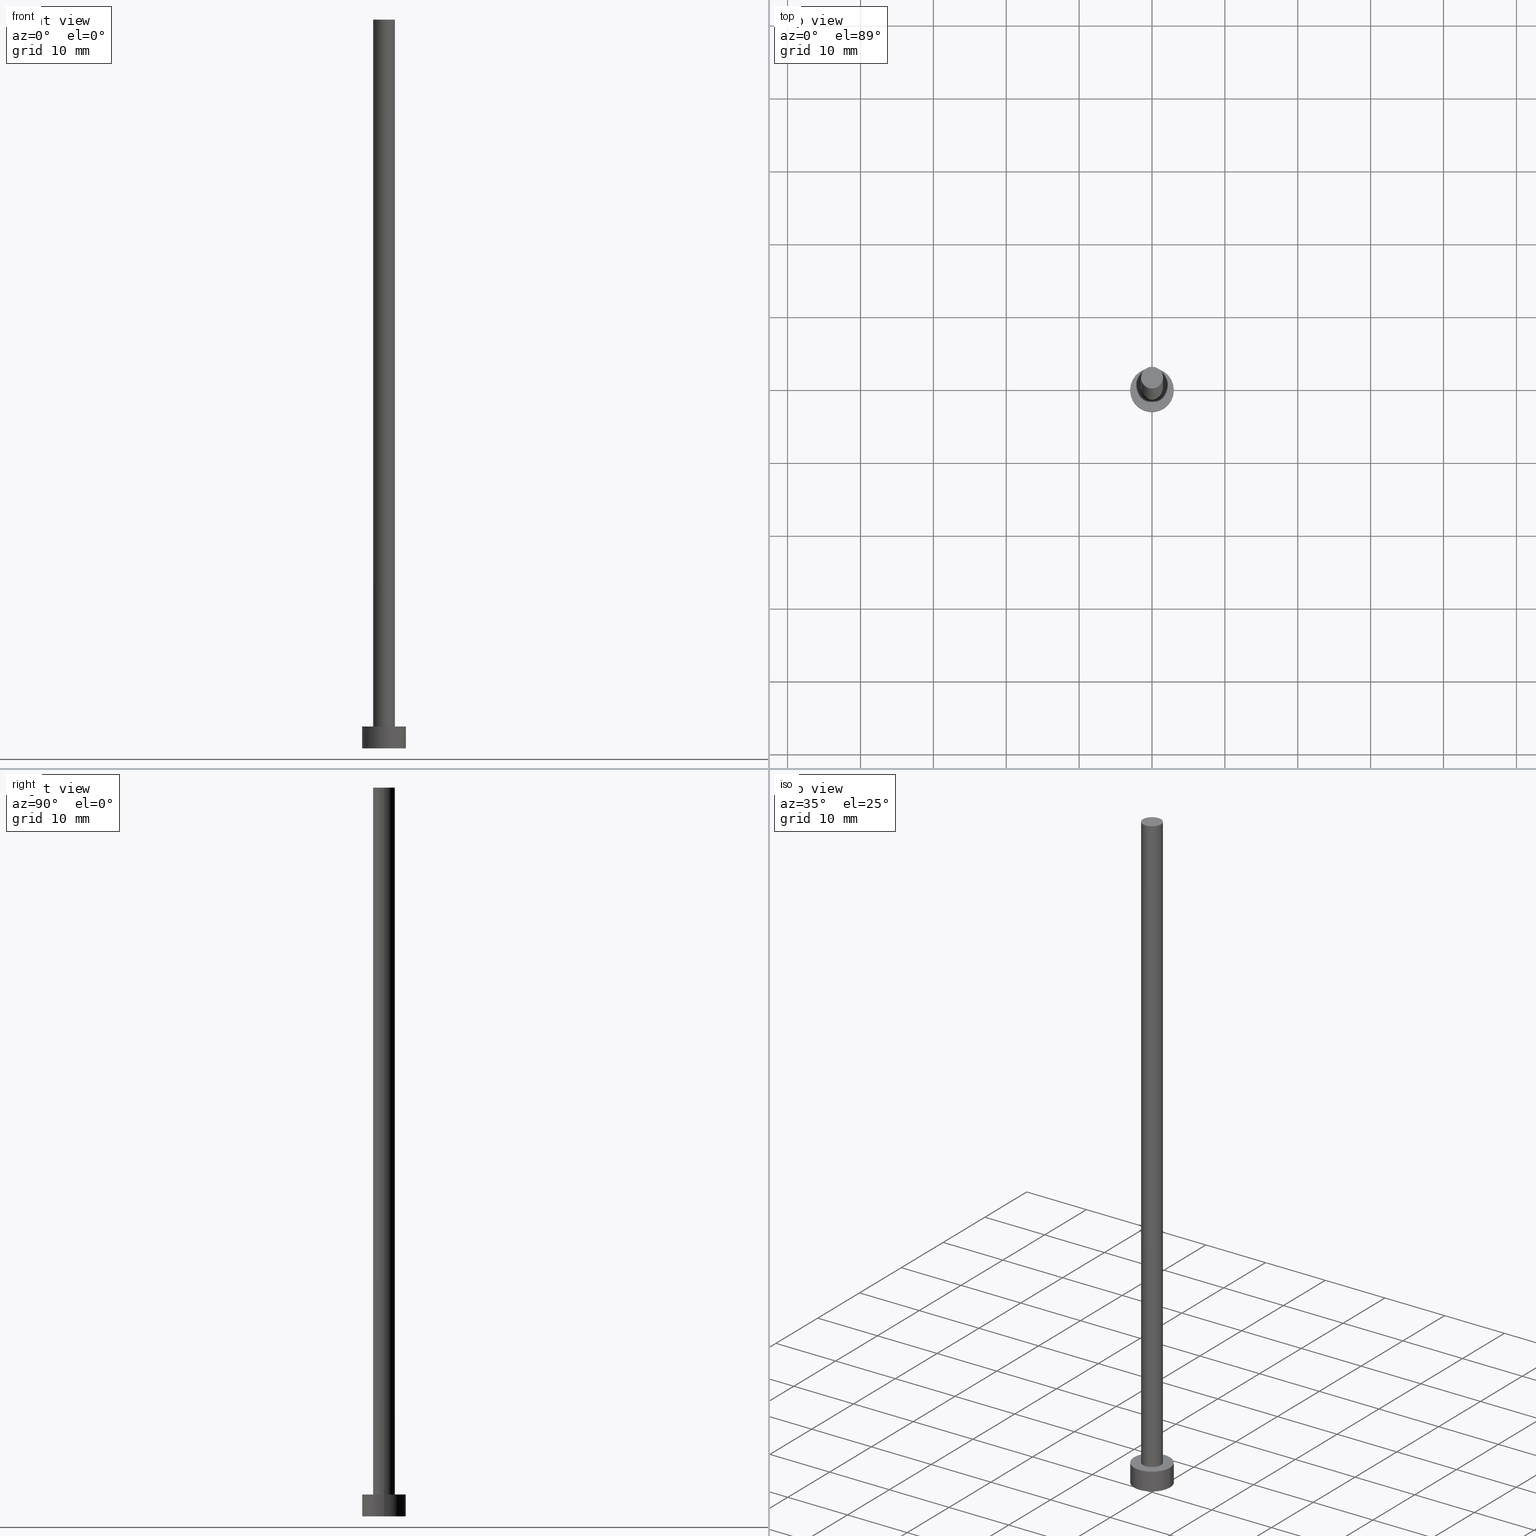
[diagram: canonical four-view strip — front | top / right | iso, engineering-drawing reading convention]
A machine part, canonical four-view strip (front | top / right | iso — engineering-drawing reading convention). The complete STEP part file that produces these views, byte-faithful:
ISO-10303-21;
HEADER;
FILE_DESCRIPTION (( 'STEP AP203' ),
    '1' );
FILE_NAME ('7081.STEP',
    '2023-02-12T12:14:11',
    ( '' ),
    ( '' ),
    'SwSTEP 2.0',
    'SolidWorks 2019',
    '' );
FILE_SCHEMA (( 'CONFIG_CONTROL_DESIGN' ));
ENDSEC;

DATA;
#1 = DIRECTION ( 'NONE',  ( 0.000000000000000000, 0.000000000000000000, 1.000000000000000000 ) ) ;
#2 = CC_DESIGN_PERSON_AND_ORGANIZATION_ASSIGNMENT ( #52, #32, ( #167 ) ) ;
#3 = CIRCLE ( 'NONE', #7, 1.500000000000000222 ) ;
#4 = MECHANICAL_CONTEXT ( 'NONE', #253, 'mechanical' ) ;
#5 = CALENDAR_DATE ( 2023, 12, 2 ) ;
#6 = PERSON_AND_ORGANIZATION ( #42, #12 ) ;
#7 = AXIS2_PLACEMENT_3D ( 'NONE', #145, #199, #236 ) ;
#8 = EDGE_LOOP ( 'NONE', ( #70, #94, #155, #136 ) ) ;
#9 = APPROVAL_DATE_TIME ( #228, #65 ) ;
#10 = EDGE_CURVE ( 'NONE', #247, #156, #248, .T. ) ;
#11 = EDGE_LOOP ( 'NONE', ( #133, #196 ) ) ;
#12 = ORGANIZATION ( 'NEUR�EN�', 'NEUR�EN�', '' ) ;
#13 = CARTESIAN_POINT ( 'NONE',  ( 0.000000000000000000, 0.000000000000000000, 3.000000000000000000 ) ) ;
#14 = DIRECTION ( 'NONE',  ( -1.000000000000000000, 0.000000000000000000, 0.000000000000000000 ) ) ;
#15 = ADVANCED_FACE ( 'NONE', ( #144 ), #214, .T. ) ;
#16 = DIRECTION ( 'NONE',  ( -1.000000000000000000, 0.000000000000000000, 0.000000000000000000 ) ) ;
#17 = CIRCLE ( 'NONE', #66, 1.500000000000000222 ) ;
#18 = CC_DESIGN_DATE_AND_TIME_ASSIGNMENT ( #89, #245, ( #167 ) ) ;
#19 = CALENDAR_DATE ( 2023, 12, 2 ) ;
#20 = DIRECTION ( 'NONE',  ( -1.000000000000000000, 0.000000000000000000, 0.000000000000000000 ) ) ;
#21 = CALENDAR_DATE ( 2023, 12, 2 ) ;
#22 = PERSON_AND_ORGANIZATION_ROLE ( 'design_owner' ) ;
#23 = CC_DESIGN_PERSON_AND_ORGANIZATION_ASSIGNMENT ( #219, #22, ( #230 ) ) ;
#24 = LINE ( 'NONE', #47, #83 ) ;
#25 = AXIS2_PLACEMENT_3D ( 'NONE', #138, #117, #57 ) ;
#26 =( LENGTH_UNIT ( ) NAMED_UNIT ( * ) SI_UNIT ( .MILLI., .METRE. ) );
#27 = VERTEX_POINT ( 'NONE', #249 ) ;
#28 = PRODUCT_DEFINITION_SHAPE ( 'NONE', 'NONE',  #167 ) ;
#29 = ORIENTED_EDGE ( 'NONE', *, *, #108, .F. ) ;
#30 = CC_DESIGN_APPROVAL ( #224, ( #36 ) ) ;
#31 = EDGE_LOOP ( 'NONE', ( #246, #211 ) ) ;
#32 = PERSON_AND_ORGANIZATION_ROLE ( 'creator' ) ;
#33 = ADVANCED_FACE ( 'NONE', ( #122 ), #212, .T. ) ;
#34 = EDGE_LOOP ( 'NONE', ( #29, #241, #49, #50 ) ) ;
#35 = PLANE ( 'NONE',  #128 ) ;
#36 = SECURITY_CLASSIFICATION ( '', '', #43 ) ;
#37 = CARTESIAN_POINT ( 'NONE',  ( 3.000000000000000444, 3.673940397442060361E-16, 3.000000000000000000 ) ) ;
#38 = CARTESIAN_POINT ( 'NONE',  ( 0.000000000000000000, 0.000000000000000000, 100.0000000000000000 ) ) ;
#39 = MANIFOLD_SOLID_BREP ( 'P�idat vysunut�m3', #217 ) ;
#40 = CARTESIAN_POINT ( 'NONE',  ( 0.000000000000000000, 0.000000000000000000, 3.000000000000000000 ) ) ;
#41 = APPROVAL_PERSON_ORGANIZATION ( #68, #216, #111 ) ;
#42 = PERSON ( 'NEUR�EN�', 'NEUR�EN�', 'NEUR�EN�', ('NEUR�EN�'), ('NEUR�EN�'), ('NEUR�EN�') ) ;
#43 = SECURITY_CLASSIFICATION_LEVEL ( 'unclassified' ) ;
#44 =( NAMED_UNIT ( * ) PLANE_ANGLE_UNIT ( ) SI_UNIT ( $, .RADIAN. ) );
#45 = DIRECTION ( 'NONE',  ( 1.000000000000000000, 0.000000000000000000, -0.000000000000000000 ) ) ;
#46 = VECTOR ( 'NONE', #120, 1000.000000000000000 ) ;
#47 = CARTESIAN_POINT ( 'NONE',  ( -3.000000000000000444, 0.000000000000000000, 3.000000000000000000 ) ) ;
#48 = ORIENTED_EDGE ( 'NONE', *, *, #124, .F. ) ;
#49 = ORIENTED_EDGE ( 'NONE', *, *, #69, .T. ) ;
#50 = ORIENTED_EDGE ( 'NONE', *, *, #100, .F. ) ;
#51 = ADVANCED_FACE ( 'NONE', ( #183 ), #54, .T. ) ;
#52 = PERSON_AND_ORGANIZATION ( #42, #12 ) ;
#53 = DIRECTION ( 'NONE',  ( 1.000000000000000000, 0.000000000000000000, 0.000000000000000000 ) ) ;
#54 = CYLINDRICAL_SURFACE ( 'NONE', #146, 3.000000000000000444 ) ;
#55 = AXIS2_PLACEMENT_3D ( 'NONE', #99, #182, #234 ) ;
#56 = DIRECTION ( 'NONE',  ( 1.000000000000000000, 0.000000000000000000, -0.000000000000000000 ) ) ;
#57 = DIRECTION ( 'NONE',  ( 1.000000000000000000, 0.000000000000000000, 0.000000000000000000 ) ) ;
#58 = PERSON_AND_ORGANIZATION ( #42, #12 ) ;
#59 = COORDINATED_UNIVERSAL_TIME_OFFSET ( 1, 0, .AHEAD. ) ;
#60 = PLANE ( 'NONE',  #243 ) ;
#61 = ADVANCED_FACE ( 'NONE', ( #251 ), #35, .F. ) ;
#62 = APPROVAL_ROLE ( '' ) ;
#63 = CC_DESIGN_SECURITY_CLASSIFICATION ( #36, ( #121 ) ) ;
#64 = DIRECTION ( 'NONE',  ( 1.000000000000000000, 0.000000000000000000, 0.000000000000000000 ) ) ;
#65 = APPROVAL ( #80, 'NEUR�EN�' ) ;
#66 = AXIS2_PLACEMENT_3D ( 'NONE', #38, #161, #160 ) ;
#67 = ORIENTED_EDGE ( 'NONE', *, *, #113, .F. ) ;
#68 = PERSON_AND_ORGANIZATION ( #42, #12 ) ;
#69 = EDGE_CURVE ( 'NONE', #27, #112, #3, .T. ) ;
#70 = ORIENTED_EDGE ( 'NONE', *, *, #171, .F. ) ;
#71 = EDGE_LOOP ( 'NONE', ( #139, #197 ) ) ;
#72 = DIRECTION ( 'NONE',  ( -0.000000000000000000, -0.000000000000000000, -1.000000000000000000 ) ) ;
#73 = CARTESIAN_POINT ( 'NONE',  ( 0.000000000000000000, 0.000000000000000000, 3.000000000000000000 ) ) ;
#74 = LINE ( 'NONE', #37, #46 ) ;
#75 = DIRECTION ( 'NONE',  ( 0.000000000000000000, 0.000000000000000000, 1.000000000000000000 ) ) ;
#76 = PRODUCT_RELATED_PRODUCT_CATEGORY ( 'detail', '', ( #230 ) ) ;
#77 = LOCAL_TIME ( 13, 14, 11.00000000000000000, #127 ) ;
#78 = APPROVAL_ROLE ( '' ) ;
#79 = CARTESIAN_POINT ( 'NONE',  ( 0.000000000000000000, 0.000000000000000000, 100.0000000000000000 ) ) ;
#80 = APPROVAL_STATUS ( 'not_yet_approved' ) ;
#81 = PERSON_AND_ORGANIZATION_ROLE ( 'design_supplier' ) ;
#82 = DIRECTION ( 'NONE',  ( -0.000000000000000000, -0.000000000000000000, -1.000000000000000000 ) ) ;
#83 = VECTOR ( 'NONE', #82, 1000.000000000000000 ) ;
#84 = DIRECTION ( 'NONE',  ( -0.000000000000000000, -0.000000000000000000, -1.000000000000000000 ) ) ;
#85 = EDGE_CURVE ( 'NONE', #135, #110, #17, .T. ) ;
#86 = CYLINDRICAL_SURFACE ( 'NONE', #87, 1.500000000000000222 ) ;
#87 = AXIS2_PLACEMENT_3D ( 'NONE', #79, #130, #20 ) ;
#88 = ORIENTED_EDGE ( 'NONE', *, *, #113, .T. ) ;
#89 = DATE_AND_TIME ( #114, #95 ) ;
#90 = ORIENTED_EDGE ( 'NONE', *, *, #187, .T. ) ;
#91 = COORDINATED_UNIVERSAL_TIME_OFFSET ( 1, 0, .AHEAD. ) ;
#92 = VERTEX_POINT ( 'NONE', #125 ) ;
#93 = APPROVAL_DATE_TIME ( #157, #216 ) ;
#94 = ORIENTED_EDGE ( 'NONE', *, *, #124, .T. ) ;
#95 = LOCAL_TIME ( 13, 14, 11.00000000000000000, #91 ) ;
#96 = CARTESIAN_POINT ( 'NONE',  ( 0.000000000000000000, 0.000000000000000000, 0.000000000000000000 ) ) ;
#97 = CARTESIAN_POINT ( 'NONE',  ( 1.500000000000000222, 1.836970198721029934E-16, 100.0000000000000000 ) ) ;
#98 = DESIGN_CONTEXT ( 'detailed design', #205, 'design' ) ;
#99 = CARTESIAN_POINT ( 'NONE',  ( 0.000000000000000000, 0.000000000000000000, 100.0000000000000000 ) ) ;
#100 = EDGE_CURVE ( 'NONE', #135, #112, #123, .T. ) ;
#101 = APPROVAL_DATE_TIME ( #105, #224 ) ;
#102 = AXIS2_PLACEMENT_3D ( 'NONE', #221, #239, #223 ) ;
#103 = PERSON_AND_ORGANIZATION ( #42, #12 ) ;
#104 = CARTESIAN_POINT ( 'NONE',  ( -3.000000000000000444, 0.000000000000000000, 0.000000000000000000 ) ) ;
#105 = DATE_AND_TIME ( #19, #77 ) ;
#106 = DIRECTION ( 'NONE',  ( 0.000000000000000000, 0.000000000000000000, 1.000000000000000000 ) ) ;
#107 = CARTESIAN_POINT ( 'NONE',  ( 0.000000000000000000, 0.000000000000000000, 3.000000000000000000 ) ) ;
#108 = EDGE_CURVE ( 'NONE', #110, #135, #118, .T. ) ;
#109 =( NAMED_UNIT ( * ) SI_UNIT ( $, .STERADIAN. ) SOLID_ANGLE_UNIT ( ) );
#110 = VERTEX_POINT ( 'NONE', #97 ) ;
#111 = APPROVAL_ROLE ( '' ) ;
#112 = VERTEX_POINT ( 'NONE', #186 ) ;
#113 = EDGE_CURVE ( 'NONE', #210, #92, #185, .T. ) ;
#114 = CALENDAR_DATE ( 2023, 12, 2 ) ;
#115 = LOCAL_TIME ( 13, 14, 11.00000000000000000, #59 ) ;
#116 = EDGE_LOOP ( 'NONE', ( #48, #192, #90, #88 ) ) ;
#117 = DIRECTION ( 'NONE',  ( 0.000000000000000000, 0.000000000000000000, 1.000000000000000000 ) ) ;
#118 = CIRCLE ( 'NONE', #55, 1.500000000000000222 ) ;
#119 = EDGE_CURVE ( 'NONE', #92, #210, #159, .T. ) ;
#120 = DIRECTION ( 'NONE',  ( -0.000000000000000000, -0.000000000000000000, -1.000000000000000000 ) ) ;
#121 = PRODUCT_DEFINITION_FORMATION_WITH_SPECIFIED_SOURCE ( 'LIBOVOLN�', '', #230, .NOT_KNOWN. ) ;
#122 = FACE_OUTER_BOUND ( 'NONE', #34, .T. ) ;
#123 = LINE ( 'NONE', #198, #220 ) ;
#124 = EDGE_CURVE ( 'NONE', #156, #92, #74, .T. ) ;
#125 = CARTESIAN_POINT ( 'NONE',  ( 3.000000000000000444, 3.673940397442060361E-16, 0.000000000000000000 ) ) ;
#126 = LOCAL_TIME ( 13, 14, 11.00000000000000000, #191 ) ;
#127 = COORDINATED_UNIVERSAL_TIME_OFFSET ( 1, 0, .AHEAD. ) ;
#128 = AXIS2_PLACEMENT_3D ( 'NONE', #96, #184, #56 ) ;
#129 = DIRECTION ( 'NONE',  ( 1.000000000000000000, 0.000000000000000000, 0.000000000000000000 ) ) ;
#130 = DIRECTION ( 'NONE',  ( -0.000000000000000000, -0.000000000000000000, -1.000000000000000000 ) ) ;
#131 = ADVANCED_FACE ( 'NONE', ( #164 ), #86, .T. ) ;
#132 = AXIS2_PLACEMENT_3D ( 'NONE', #213, #237, #232 ) ;
#133 = ORIENTED_EDGE ( 'NONE', *, *, #85, .T. ) ;
#134 = CARTESIAN_POINT ( 'NONE',  ( 0.000000000000000000, 0.000000000000000000, 100.0000000000000000 ) ) ;
#135 = VERTEX_POINT ( 'NONE', #174 ) ;
#136 = ORIENTED_EDGE ( 'NONE', *, *, #187, .F. ) ;
#137 = APPROVAL_STATUS ( 'not_yet_approved' ) ;
#138 = CARTESIAN_POINT ( 'NONE',  ( 0.000000000000000000, 0.000000000000000000, 3.000000000000000000 ) ) ;
#139 = ORIENTED_EDGE ( 'NONE', *, *, #10, .T. ) ;
#140 = EDGE_CURVE ( 'NONE', #112, #27, #235, .T. ) ;
#141 = DIRECTION ( 'NONE',  ( -0.000000000000000000, -0.000000000000000000, -1.000000000000000000 ) ) ;
#142 = LOCAL_TIME ( 13, 14, 11.00000000000000000, #244 ) ;
#143 = CARTESIAN_POINT ( 'NONE',  ( 0.000000000000000000, 0.000000000000000000, 0.000000000000000000 ) ) ;
#144 = FACE_OUTER_BOUND ( 'NONE', #116, .T. ) ;
#145 = CARTESIAN_POINT ( 'NONE',  ( 0.000000000000000000, 0.000000000000000000, 3.000000000000000000 ) ) ;
#146 = AXIS2_PLACEMENT_3D ( 'NONE', #13, #250, #16 ) ;
#147 = PERSON_AND_ORGANIZATION_ROLE ( 'classification_officer' ) ;
#148 = PERSON_AND_ORGANIZATION_ROLE ( 'creator' ) ;
#149 = APPROVAL_PERSON_ORGANIZATION ( #103, #224, #78 ) ;
#150 = APPLICATION_PROTOCOL_DEFINITION ( 'international standard', 'config_control_design', 1994, #253 ) ;
#151 = DIRECTION ( 'NONE',  ( 0.000000000000000000, 0.000000000000000000, 1.000000000000000000 ) ) ;
#152 = ORIENTED_EDGE ( 'NONE', *, *, #85, .F. ) ;
#153 = AXIS2_PLACEMENT_3D ( 'NONE', #134, #242, #240 ) ;
#154 = PERSON_AND_ORGANIZATION ( #42, #12 ) ;
#155 = ORIENTED_EDGE ( 'NONE', *, *, #119, .T. ) ;
#156 = VERTEX_POINT ( 'NONE', #169 ) ;
#157 = DATE_AND_TIME ( #177, #142 ) ;
#158 = ORIENTED_EDGE ( 'NONE', *, *, #100, .T. ) ;
#159 = CIRCLE ( 'NONE', #132, 3.000000000000000444 ) ;
#160 = DIRECTION ( 'NONE',  ( 1.000000000000000000, 0.000000000000000000, 0.000000000000000000 ) ) ;
#161 = DIRECTION ( 'NONE',  ( 0.000000000000000000, 0.000000000000000000, 1.000000000000000000 ) ) ;
#162 = EDGE_CURVE ( 'NONE', #110, #27, #254, .T. ) ;
#163 = CC_DESIGN_APPROVAL ( #65, ( #167 ) ) ;
#164 = FACE_OUTER_BOUND ( 'NONE', #208, .T. ) ;
#165 = UNCERTAINTY_MEASURE_WITH_UNIT (LENGTH_MEASURE( 1.000000000000000082E-05 ), #26, 'distance_accuracy_value', 'NONE');
#166 = DIRECTION ( 'NONE',  ( -1.000000000000000000, 0.000000000000000000, 0.000000000000000000 ) ) ;
#167 = PRODUCT_DEFINITION ( 'NEZN�M�', '', #121, #98 ) ;
#168 = PERSON_AND_ORGANIZATION ( #42, #12 ) ;
#169 = CARTESIAN_POINT ( 'NONE',  ( 3.000000000000000444, 3.673940397442060361E-16, 3.000000000000000000 ) ) ;
#170 = CARTESIAN_POINT ( 'NONE',  ( -3.000000000000000444, 0.000000000000000000, 3.000000000000000000 ) ) ;
#171 = EDGE_CURVE ( 'NONE', #156, #247, #188, .T. ) ;
#172 = PLANE ( 'NONE',  #153 ) ;
#173 = FACE_OUTER_BOUND ( 'NONE', #11, .T. ) ;
#174 = CARTESIAN_POINT ( 'NONE',  ( -1.500000000000000222, 0.000000000000000000, 100.0000000000000000 ) ) ;
#175 =( GEOMETRIC_REPRESENTATION_CONTEXT ( 3 ) GLOBAL_UNCERTAINTY_ASSIGNED_CONTEXT ( ( #165 ) ) GLOBAL_UNIT_ASSIGNED_CONTEXT ( ( #26, #44, #109 ) ) REPRESENTATION_CONTEXT ( 'NONE', 'WORKASPACE' ) );
#176 = ORIENTED_EDGE ( 'NONE', *, *, #119, .F. ) ;
#177 = CALENDAR_DATE ( 2023, 12, 2 ) ;
#178 = ADVANCED_BREP_SHAPE_REPRESENTATION ( '7081', ( #39, #231 ), #175 ) ;
#179 = CC_DESIGN_DATE_AND_TIME_ASSIGNMENT ( #201, #218, ( #36 ) ) ;
#180 = ORIENTED_EDGE ( 'NONE', *, *, #162, .F. ) ;
#181 = AXIS2_PLACEMENT_3D ( 'NONE', #107, #1, #129 ) ;
#182 = DIRECTION ( 'NONE',  ( 0.000000000000000000, 0.000000000000000000, 1.000000000000000000 ) ) ;
#183 = FACE_OUTER_BOUND ( 'NONE', #8, .T. ) ;
#184 = DIRECTION ( 'NONE',  ( 0.000000000000000000, 0.000000000000000000, 1.000000000000000000 ) ) ;
#185 = CIRCLE ( 'NONE', #202, 3.000000000000000444 ) ;
#186 = CARTESIAN_POINT ( 'NONE',  ( -1.500000000000000222, 0.000000000000000000, 3.000000000000000000 ) ) ;
#187 = EDGE_CURVE ( 'NONE', #247, #210, #24, .T. ) ;
#188 = CIRCLE ( 'NONE', #181, 3.000000000000000444 ) ;
#189 = CARTESIAN_POINT ( 'NONE',  ( 0.000000000000000000, 0.000000000000000000, 0.000000000000000000 ) ) ;
#190 = APPROVAL_STATUS ( 'not_yet_approved' ) ;
#191 = COORDINATED_UNIVERSAL_TIME_OFFSET ( 1, 0, .AHEAD. ) ;
#192 = ORIENTED_EDGE ( 'NONE', *, *, #10, .F. ) ;
#193 = AXIS2_PLACEMENT_3D ( 'NONE', #73, #141, #14 ) ;
#194 = EDGE_LOOP ( 'NONE', ( #67, #176 ) ) ;
#195 = CC_DESIGN_PERSON_AND_ORGANIZATION_ASSIGNMENT ( #58, #147, ( #36 ) ) ;
#196 = ORIENTED_EDGE ( 'NONE', *, *, #108, .T. ) ;
#197 = ORIENTED_EDGE ( 'NONE', *, *, #171, .T. ) ;
#198 = CARTESIAN_POINT ( 'NONE',  ( -1.500000000000000222, 0.000000000000000000, 100.0000000000000000 ) ) ;
#199 = DIRECTION ( 'NONE',  ( 0.000000000000000000, 0.000000000000000000, 1.000000000000000000 ) ) ;
#200 = VECTOR ( 'NONE', #84, 1000.000000000000000 ) ;
#201 = DATE_AND_TIME ( #21, #115 ) ;
#202 = AXIS2_PLACEMENT_3D ( 'NONE', #143, #75, #53 ) ;
#203 = ADVANCED_FACE ( 'NONE', ( #173 ), #172, .T. ) ;
#204 = FACE_OUTER_BOUND ( 'NONE', #71, .T. ) ;
#205 = APPLICATION_CONTEXT ( 'configuration controlled 3d designs of mechanical parts and assemblies' ) ;
#206 = CARTESIAN_POINT ( 'NONE',  ( 1.500000000000000222, 1.836970198721029934E-16, 100.0000000000000000 ) ) ;
#207 = FACE_BOUND ( 'NONE', #31, .T. ) ;
#208 = EDGE_LOOP ( 'NONE', ( #180, #152, #158, #225 ) ) ;
#209 = ADVANCED_FACE ( 'NONE', ( #207, #204 ), #60, .T. ) ;
#210 = VERTEX_POINT ( 'NONE', #104 ) ;
#211 = ORIENTED_EDGE ( 'NONE', *, *, #69, .F. ) ;
#212 = CYLINDRICAL_SURFACE ( 'NONE', #238, 1.500000000000000222 ) ;
#213 = CARTESIAN_POINT ( 'NONE',  ( 0.000000000000000000, 0.000000000000000000, 0.000000000000000000 ) ) ;
#214 = CYLINDRICAL_SURFACE ( 'NONE', #193, 3.000000000000000444 ) ;
#215 = DIRECTION ( 'NONE',  ( -0.000000000000000000, -0.000000000000000000, -1.000000000000000000 ) ) ;
#216 = APPROVAL ( #137, 'NEUR�EN�' ) ;
#217 = CLOSED_SHELL ( 'NONE', ( #33, #51, #15, #209, #61, #131, #203 ) ) ;
#218 = DATE_TIME_ROLE ( 'classification_date' ) ;
#219 = PERSON_AND_ORGANIZATION ( #42, #12 ) ;
#220 = VECTOR ( 'NONE', #215, 1000.000000000000000 ) ;
#221 = CARTESIAN_POINT ( 'NONE',  ( 0.000000000000000000, 0.000000000000000000, 3.000000000000000000 ) ) ;
#222 = SHAPE_DEFINITION_REPRESENTATION ( #28, #178 ) ;
#223 = DIRECTION ( 'NONE',  ( 1.000000000000000000, 0.000000000000000000, 0.000000000000000000 ) ) ;
#224 = APPROVAL ( #190, 'NEUR�EN�' ) ;
#225 = ORIENTED_EDGE ( 'NONE', *, *, #140, .T. ) ;
#226 = APPROVAL_PERSON_ORGANIZATION ( #154, #65, #62 ) ;
#227 = CC_DESIGN_APPROVAL ( #216, ( #121 ) ) ;
#228 = DATE_AND_TIME ( #5, #126 ) ;
#229 = CC_DESIGN_PERSON_AND_ORGANIZATION_ASSIGNMENT ( #168, #81, ( #121 ) ) ;
#230 = PRODUCT ( '7081', '7081', '', ( #4 ) ) ;
#231 = AXIS2_PLACEMENT_3D ( 'NONE', #189, #106, #64 ) ;
#232 = DIRECTION ( 'NONE',  ( 1.000000000000000000, 0.000000000000000000, 0.000000000000000000 ) ) ;
#233 = CC_DESIGN_PERSON_AND_ORGANIZATION_ASSIGNMENT ( #6, #148, ( #121 ) ) ;
#234 = DIRECTION ( 'NONE',  ( 1.000000000000000000, 0.000000000000000000, 0.000000000000000000 ) ) ;
#235 = CIRCLE ( 'NONE', #102, 1.500000000000000222 ) ;
#236 = DIRECTION ( 'NONE',  ( 1.000000000000000000, 0.000000000000000000, 0.000000000000000000 ) ) ;
#237 = DIRECTION ( 'NONE',  ( 0.000000000000000000, 0.000000000000000000, 1.000000000000000000 ) ) ;
#238 = AXIS2_PLACEMENT_3D ( 'NONE', #252, #72, #166 ) ;
#239 = DIRECTION ( 'NONE',  ( 0.000000000000000000, 0.000000000000000000, 1.000000000000000000 ) ) ;
#240 = DIRECTION ( 'NONE',  ( 1.000000000000000000, 0.000000000000000000, -0.000000000000000000 ) ) ;
#241 = ORIENTED_EDGE ( 'NONE', *, *, #162, .T. ) ;
#242 = DIRECTION ( 'NONE',  ( 0.000000000000000000, 0.000000000000000000, 1.000000000000000000 ) ) ;
#243 = AXIS2_PLACEMENT_3D ( 'NONE', #40, #151, #45 ) ;
#244 = COORDINATED_UNIVERSAL_TIME_OFFSET ( 1, 0, .AHEAD. ) ;
#245 = DATE_TIME_ROLE ( 'creation_date' ) ;
#246 = ORIENTED_EDGE ( 'NONE', *, *, #140, .F. ) ;
#247 = VERTEX_POINT ( 'NONE', #170 ) ;
#248 = CIRCLE ( 'NONE', #25, 3.000000000000000444 ) ;
#249 = CARTESIAN_POINT ( 'NONE',  ( 1.500000000000000222, 1.836970198721029934E-16, 3.000000000000000000 ) ) ;
#250 = DIRECTION ( 'NONE',  ( -0.000000000000000000, -0.000000000000000000, -1.000000000000000000 ) ) ;
#251 = FACE_OUTER_BOUND ( 'NONE', #194, .T. ) ;
#252 = CARTESIAN_POINT ( 'NONE',  ( 0.000000000000000000, 0.000000000000000000, 100.0000000000000000 ) ) ;
#253 = APPLICATION_CONTEXT ( 'configuration controlled 3d designs of mechanical parts and assemblies' ) ;
#254 = LINE ( 'NONE', #206, #200 ) ;
#255 = APPLICATION_PROTOCOL_DEFINITION ( 'international standard', 'config_control_design', 1994, #205 ) ;
ENDSEC;
END-ISO-10303-21;
